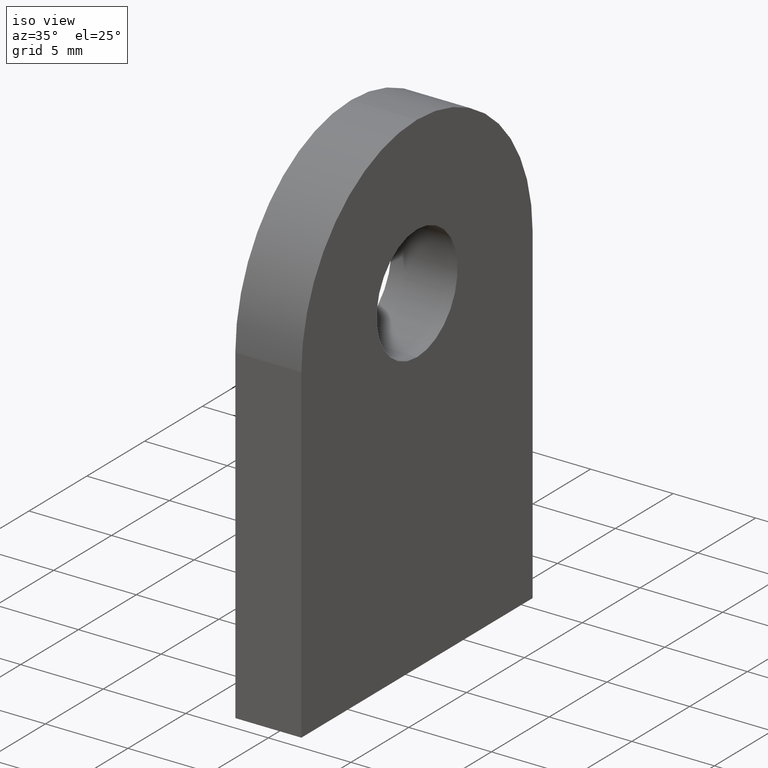
[diagram: clean part render]
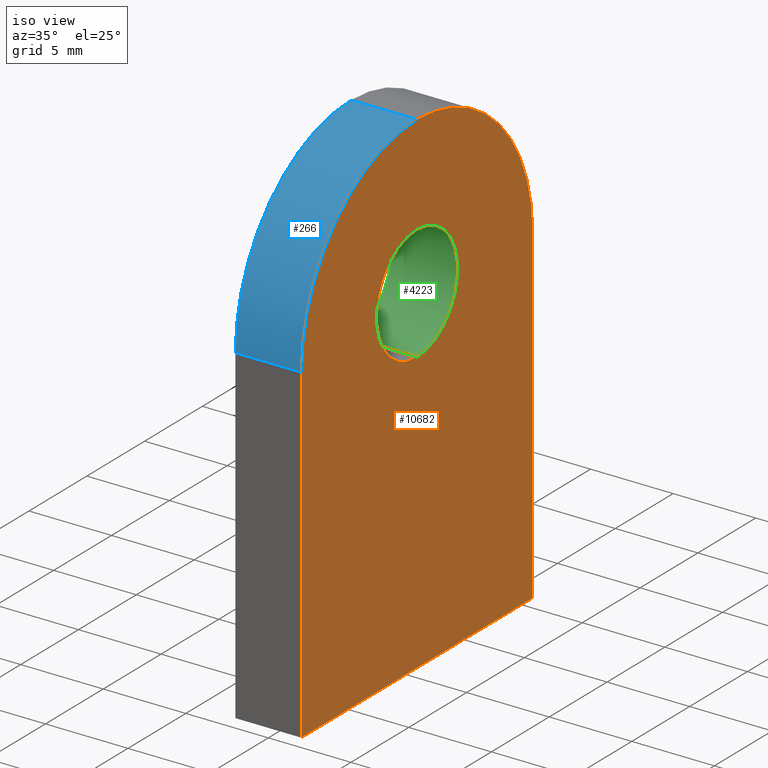
[diagram: same view with three faces highlighted in distinct colors, each labeled with its STEP entity id]
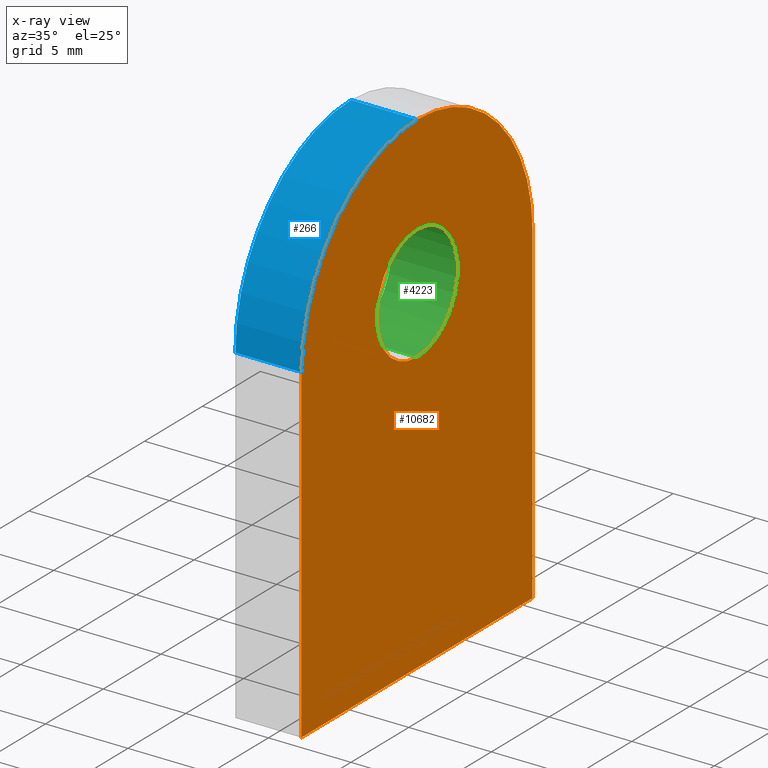
[diagram: x-ray of the same camera — body ghosted, the three highlighted faces saturated]
A machine part, iso view with three faces highlighted in distinct colors.
The next image is the same camera in x-ray (body ghosted, the three faces saturated) — at least one of them is partly hidden behind the body in this view.
Their STEP definitions:

[orange] entity #10682 — the highlighted planar face has unit normal (-1, -0, 0).
#109 = VERTEX_POINT ( 'NONE', #1011 ) ;
#181 = FACE_OUTER_BOUND ( 'NONE', #277, .T. ) ;
#277 = EDGE_LOOP ( 'NONE', ( #4407, #2039, #4705, #3169, #6220 ) ) ;
#525 = AXIS2_PLACEMENT_3D ( 'NONE', #1893, #3851, #6555 ) ;
#794 = CIRCLE ( 'NONE', #7937, 3.499999999999999600 ) ;
#1011 = CARTESIAN_POINT ( 'NONE',  ( 2.000000000000000000, 10.00000000000000000, -3.061616997868383000E-015 ) ) ;
#1209 = CARTESIAN_POINT ( 'NONE',  ( 2.000000000000000000, 0.0000000000000000000, 19.99999999999999600 ) ) ;
#1276 = DIRECTION ( 'NONE',  ( 1.000000000000000000, 0.0000000000000000000, 0.0000000000000000000 ) ) ;
#1384 = DIRECTION ( 'NONE',  ( -1.000000000000000000, -0.0000000000000000000, 0.0000000000000000000 ) ) ;
#1503 = DIRECTION ( 'NONE',  ( 0.0000000000000000000, 0.0000000000000000000, 1.000000000000000000 ) ) ;
#1796 = EDGE_CURVE ( 'NONE', #5642, #7062, #11952, .T. ) ;
#1855 = AXIS2_PLACEMENT_3D ( 'NONE', #8323, #2634, #9282 ) ;
#1893 = CARTESIAN_POINT ( 'NONE',  ( 2.000000000000000000, 0.0000000000000000000, 19.99999999999999600 ) ) ;
#1925 = CARTESIAN_POINT ( 'NONE',  ( 2.000000000000000000, 0.0000000000000000000, 16.99999999999999600 ) ) ;
#2039 = ORIENTED_EDGE ( 'NONE', *, *, #3159, .F. ) ;
#2241 = ORIENTED_EDGE ( 'NONE', *, *, #5216, .F. ) ;
#2634 = DIRECTION ( 'NONE',  ( 1.000000000000000000, 0.0000000000000000000, 0.0000000000000000000 ) ) ;
#2823 = CARTESIAN_POINT ( 'NONE',  ( 2.000000000000000000, 10.00000000000000000, 19.99999999999999600 ) ) ;
#2829 = CARTESIAN_POINT ( 'NONE',  ( 2.000000000000000000, 10.00000000000000000, -3.061616997868383000E-015 ) ) ;
#3159 = EDGE_CURVE ( 'NONE', #5457, #4537, #8964, .T. ) ;
#3163 = CARTESIAN_POINT ( 'NONE',  ( 2.000000000000000000, 0.0000000000000000000, 20.49999999999999600 ) ) ;
#3169 = ORIENTED_EDGE ( 'NONE', *, *, #7511, .F. ) ;
#3499 = CARTESIAN_POINT ( 'NONE',  ( 2.000000000000000000, -10.00000000000000000, 19.99999999999999600 ) ) ;
#3521 = EDGE_CURVE ( 'NONE', #4537, #5642, #12068, .T. ) ;
#3658 = CARTESIAN_POINT ( 'NONE',  ( 2.000000000000000000, -10.00000000000000000, -3.061616997868383000E-015 ) ) ;
#3790 = DIRECTION ( 'NONE',  ( 0.0000000000000000000, 0.0000000000000000000, -1.000000000000000000 ) ) ;
#3851 = DIRECTION ( 'NONE',  ( -1.000000000000000000, -0.0000000000000000000, 0.0000000000000000000 ) ) ;
#3913 = FACE_BOUND ( 'NONE', #8077, .T. ) ;
#3958 = CARTESIAN_POINT ( 'NONE',  ( 2.000000000000000000, 0.0000000000000000000, 30.00000000000000000 ) ) ;
#4362 = CARTESIAN_POINT ( 'NONE',  ( 2.000000000000000000, 4.286263797015737100E-016, 23.99999999999999600 ) ) ;
#4407 = ORIENTED_EDGE ( 'NONE', *, *, #3521, .F. ) ;
#4537 = VERTEX_POINT ( 'NONE', #3499 ) ;
#4705 = ORIENTED_EDGE ( 'NONE', *, *, #5969, .F. ) ;
#5004 = CARTESIAN_POINT ( 'NONE',  ( 2.000000000000000000, 10.00000000000000000, 19.99999999999999600 ) ) ;
#5216 = EDGE_CURVE ( 'NONE', #5270, #8512, #11286, .T. ) ;
#5270 = VERTEX_POINT ( 'NONE', #1925 ) ;
#5457 = VERTEX_POINT ( 'NONE', #3658 ) ;
#5642 = VERTEX_POINT ( 'NONE', #3958 ) ;
#5969 = EDGE_CURVE ( 'NONE', #109, #5457, #10237, .T. ) ;
#6004 = ORIENTED_EDGE ( 'NONE', *, *, #10544, .F. ) ;
#6220 = ORIENTED_EDGE ( 'NONE', *, *, #1796, .F. ) ;
#6238 = DIRECTION ( 'NONE',  ( 0.0000000000000000000, 0.0000000000000000000, 1.000000000000000000 ) ) ;
#6366 = LINE ( 'NONE', #2823, #7115 ) ;
#6384 = VECTOR ( 'NONE', #11349, 1000.000000000000000 ) ;
#6419 = VECTOR ( 'NONE', #10120, 1000.000000000000000 ) ;
#6555 = DIRECTION ( 'NONE',  ( 0.0000000000000000000, 0.0000000000000000000, 1.000000000000000000 ) ) ;
#7062 = VERTEX_POINT ( 'NONE', #5004 ) ;
#7115 = VECTOR ( 'NONE', #3790, 1000.000000000000000 ) ;
#7188 = AXIS2_PLACEMENT_3D ( 'NONE', #1209, #1384, #6238 ) ;
#7511 = EDGE_CURVE ( 'NONE', #7062, #109, #6366, .T. ) ;
#7902 = DIRECTION ( 'NONE',  ( 0.0000000000000000000, 0.0000000000000000000, -1.000000000000000000 ) ) ;
#7937 = AXIS2_PLACEMENT_3D ( 'NONE', #3163, #1276, #7902 ) ;
#8077 = EDGE_LOOP ( 'NONE', ( #2241, #6004 ) ) ;
#8323 = CARTESIAN_POINT ( 'NONE',  ( 2.000000000000000000, 0.0000000000000000000, 20.49999999999999600 ) ) ;
#8512 = VERTEX_POINT ( 'NONE', #4362 ) ;
#8964 = LINE ( 'NONE', #10922, #6419 ) ;
#8992 = CARTESIAN_POINT ( 'NONE',  ( 2.000000000000000000, 0.0000000000000000000, 19.99999999999999600 ) ) ;
#9213 = PLANE ( 'NONE',  #525 ) ;
#9282 = DIRECTION ( 'NONE',  ( 0.0000000000000000000, 0.0000000000000000000, -1.000000000000000000 ) ) ;
#9802 = AXIS2_PLACEMENT_3D ( 'NONE', #8992, #9933, #1503 ) ;
#9933 = DIRECTION ( 'NONE',  ( -1.000000000000000000, -0.0000000000000000000, 0.0000000000000000000 ) ) ;
#10120 = DIRECTION ( 'NONE',  ( 0.0000000000000000000, 0.0000000000000000000, 1.000000000000000000 ) ) ;
#10237 = LINE ( 'NONE', #2829, #6384 ) ;
#10544 = EDGE_CURVE ( 'NONE', #8512, #5270, #794, .T. ) ;
#10682 = ADVANCED_FACE ( 'NONE', ( #3913, #181 ), #9213, .F. ) ;
#10922 = CARTESIAN_POINT ( 'NONE',  ( 2.000000000000000000, -10.00000000000000000, -3.061616997868383000E-015 ) ) ;
#11286 = CIRCLE ( 'NONE', #1855, 3.499999999999999600 ) ;
#11349 = DIRECTION ( 'NONE',  ( 0.0000000000000000000, -1.000000000000000000, 0.0000000000000000000 ) ) ;
#11952 = CIRCLE ( 'NONE', #7188, 10.00000000000000200 ) ;
#12068 = CIRCLE ( 'NONE', #9802, 10.00000000000000200 ) ;

[blue] entity #266 — the highlighted cylindrical surface (partial cylindrical patch) has radius 10 mm, axis along (-1, -0, -0).
#266 = ADVANCED_FACE ( 'NONE', ( #11505 ), #7954, .T. ) ;
#327 = ORIENTED_EDGE ( 'NONE', *, *, #3521, .T. ) ;
#438 = DIRECTION ( 'NONE',  ( -1.000000000000000000, -0.0000000000000000000, -0.0000000000000000000 ) ) ;
#757 = ORIENTED_EDGE ( 'NONE', *, *, #1103, .F. ) ;
#1103 = EDGE_CURVE ( 'NONE', #4537, #1899, #4959, .T. ) ;
#1359 = DIRECTION ( 'NONE',  ( -1.000000000000000000, -0.0000000000000000000, 0.0000000000000000000 ) ) ;
#1503 = DIRECTION ( 'NONE',  ( 0.0000000000000000000, 0.0000000000000000000, 1.000000000000000000 ) ) ;
#1899 = VERTEX_POINT ( 'NONE', #2203 ) ;
#2097 = LINE ( 'NONE', #9137, #8047 ) ;
#2203 = CARTESIAN_POINT ( 'NONE',  ( -2.000000000000000000, -10.00000000000000000, 19.99999999999999600 ) ) ;
#2289 = EDGE_LOOP ( 'NONE', ( #327, #5592, #4435, #757 ) ) ;
#2333 = CARTESIAN_POINT ( 'NONE',  ( -2.000000000000000000, 0.0000000000000000000, 30.00000000000000000 ) ) ;
#2345 = CARTESIAN_POINT ( 'NONE',  ( -2.000000000000000000, 0.0000000000000000000, 19.99999999999999600 ) ) ;
#2377 = DIRECTION ( 'NONE',  ( -1.000000000000000000, -0.0000000000000000000, -0.0000000000000000000 ) ) ;
#3499 = CARTESIAN_POINT ( 'NONE',  ( 2.000000000000000000, -10.00000000000000000, 19.99999999999999600 ) ) ;
#3521 = EDGE_CURVE ( 'NONE', #4537, #5642, #12068, .T. ) ;
#3611 = CARTESIAN_POINT ( 'NONE',  ( 2.000000000000000000, 0.0000000000000000000, 19.99999999999999600 ) ) ;
#3958 = CARTESIAN_POINT ( 'NONE',  ( 2.000000000000000000, 0.0000000000000000000, 30.00000000000000000 ) ) ;
#3979 = AXIS2_PLACEMENT_3D ( 'NONE', #3611, #2377, #12129 ) ;
#4435 = ORIENTED_EDGE ( 'NONE', *, *, #9158, .F. ) ;
#4537 = VERTEX_POINT ( 'NONE', #3499 ) ;
#4959 = LINE ( 'NONE', #9839, #6748 ) ;
#5592 = ORIENTED_EDGE ( 'NONE', *, *, #11825, .T. ) ;
#5642 = VERTEX_POINT ( 'NONE', #3958 ) ;
#6239 = DIRECTION ( 'NONE',  ( -1.000000000000000000, -0.0000000000000000000, -0.0000000000000000000 ) ) ;
#6624 = VERTEX_POINT ( 'NONE', #2333 ) ;
#6748 = VECTOR ( 'NONE', #438, 1000.000000000000000 ) ;
#7949 = DIRECTION ( 'NONE',  ( 0.0000000000000000000, 0.0000000000000000000, 1.000000000000000000 ) ) ;
#7954 = CYLINDRICAL_SURFACE ( 'NONE', #3979, 10.00000000000000200 ) ;
#8047 = VECTOR ( 'NONE', #6239, 1000.000000000000000 ) ;
#8263 = CIRCLE ( 'NONE', #11257, 10.00000000000000200 ) ;
#8992 = CARTESIAN_POINT ( 'NONE',  ( 2.000000000000000000, 0.0000000000000000000, 19.99999999999999600 ) ) ;
#9137 = CARTESIAN_POINT ( 'NONE',  ( 2.000000000000000000, 0.0000000000000000000, 30.00000000000000000 ) ) ;
#9158 = EDGE_CURVE ( 'NONE', #1899, #6624, #8263, .T. ) ;
#9802 = AXIS2_PLACEMENT_3D ( 'NONE', #8992, #9933, #1503 ) ;
#9839 = CARTESIAN_POINT ( 'NONE',  ( 2.000000000000000000, -10.00000000000000000, 19.99999999999999600 ) ) ;
#9933 = DIRECTION ( 'NONE',  ( -1.000000000000000000, -0.0000000000000000000, 0.0000000000000000000 ) ) ;
#11257 = AXIS2_PLACEMENT_3D ( 'NONE', #2345, #1359, #7949 ) ;
#11505 = FACE_OUTER_BOUND ( 'NONE', #2289, .T. ) ;
#11825 = EDGE_CURVE ( 'NONE', #5642, #6624, #2097, .T. ) ;
#12068 = CIRCLE ( 'NONE', #9802, 10.00000000000000200 ) ;
#12129 = DIRECTION ( 'NONE',  ( 0.0000000000000000000, 0.0000000000000000000, 1.000000000000000000 ) ) ;

[green] entity #4223 — the highlighted cylindrical surface (partial cylindrical patch) has radius 3.5 mm, axis along (1, -0, -0).
#160 = LINE ( 'NONE', #10122, #11157 ) ;
#240 = AXIS2_PLACEMENT_3D ( 'NONE', #891, #2707, #8439 ) ;
#459 = CARTESIAN_POINT ( 'NONE',  ( -2.000000000000000000, 0.0000000000000000000, 20.49999999999999600 ) ) ;
#634 = CARTESIAN_POINT ( 'NONE',  ( -2.000000000000000000, 0.0000000000000000000, 16.99999999999999600 ) ) ;
#743 = LINE ( 'NONE', #7247, #5644 ) ;
#891 = CARTESIAN_POINT ( 'NONE',  ( -2.000000000000000000, 0.0000000000000000000, 20.49999999999999600 ) ) ;
#1122 = ORIENTED_EDGE ( 'NONE', *, *, #5892, .T. ) ;
#1441 = DIRECTION ( 'NONE',  ( 0.0000000000000000000, 0.0000000000000000000, -1.000000000000000000 ) ) ;
#1855 = AXIS2_PLACEMENT_3D ( 'NONE', #8323, #2634, #9282 ) ;
#1925 = CARTESIAN_POINT ( 'NONE',  ( 2.000000000000000000, 0.0000000000000000000, 16.99999999999999600 ) ) ;
#2035 = ORIENTED_EDGE ( 'NONE', *, *, #2744, .F. ) ;
#2634 = DIRECTION ( 'NONE',  ( 1.000000000000000000, 0.0000000000000000000, 0.0000000000000000000 ) ) ;
#2707 = DIRECTION ( 'NONE',  ( 1.000000000000000000, 0.0000000000000000000, 0.0000000000000000000 ) ) ;
#2744 = EDGE_CURVE ( 'NONE', #3267, #8705, #10880, .T. ) ;
#2817 = EDGE_LOOP ( 'NONE', ( #7459, #2035, #1122, #8061 ) ) ;
#3267 = VERTEX_POINT ( 'NONE', #634 ) ;
#4223 = ADVANCED_FACE ( 'NONE', ( #11314 ), #8333, .F. ) ;
#4362 = CARTESIAN_POINT ( 'NONE',  ( 2.000000000000000000, 4.286263797015737100E-016, 23.99999999999999600 ) ) ;
#5216 = EDGE_CURVE ( 'NONE', #5270, #8512, #11286, .T. ) ;
#5270 = VERTEX_POINT ( 'NONE', #1925 ) ;
#5450 = AXIS2_PLACEMENT_3D ( 'NONE', #459, #7118, #1441 ) ;
#5644 = VECTOR ( 'NONE', #12107, 1000.000000000000000 ) ;
#5892 = EDGE_CURVE ( 'NONE', #3267, #5270, #743, .T. ) ;
#7118 = DIRECTION ( 'NONE',  ( 1.000000000000000000, -0.0000000000000000000, -0.0000000000000000000 ) ) ;
#7247 = CARTESIAN_POINT ( 'NONE',  ( -2.000000000000000000, 0.0000000000000000000, 16.99999999999999600 ) ) ;
#7459 = ORIENTED_EDGE ( 'NONE', *, *, #11884, .F. ) ;
#8061 = ORIENTED_EDGE ( 'NONE', *, *, #5216, .T. ) ;
#8323 = CARTESIAN_POINT ( 'NONE',  ( 2.000000000000000000, 0.0000000000000000000, 20.49999999999999600 ) ) ;
#8333 = CYLINDRICAL_SURFACE ( 'NONE', #5450, 3.499999999999999600 ) ;
#8439 = DIRECTION ( 'NONE',  ( 0.0000000000000000000, 0.0000000000000000000, -1.000000000000000000 ) ) ;
#8512 = VERTEX_POINT ( 'NONE', #4362 ) ;
#8705 = VERTEX_POINT ( 'NONE', #9427 ) ;
#9282 = DIRECTION ( 'NONE',  ( 0.0000000000000000000, 0.0000000000000000000, -1.000000000000000000 ) ) ;
#9427 = CARTESIAN_POINT ( 'NONE',  ( -2.000000000000000000, 4.286263797015737100E-016, 23.99999999999999600 ) ) ;
#10122 = CARTESIAN_POINT ( 'NONE',  ( -2.000000000000000000, 4.286263797015736600E-016, 23.99999999999999600 ) ) ;
#10880 = CIRCLE ( 'NONE', #240, 3.499999999999999600 ) ;
#11157 = VECTOR ( 'NONE', #11893, 1000.000000000000000 ) ;
#11286 = CIRCLE ( 'NONE', #1855, 3.499999999999999600 ) ;
#11314 = FACE_OUTER_BOUND ( 'NONE', #2817, .T. ) ;
#11884 = EDGE_CURVE ( 'NONE', #8705, #8512, #160, .T. ) ;
#11893 = DIRECTION ( 'NONE',  ( 1.000000000000000000, -0.0000000000000000000, -0.0000000000000000000 ) ) ;
#12107 = DIRECTION ( 'NONE',  ( 1.000000000000000000, -0.0000000000000000000, -0.0000000000000000000 ) ) ;